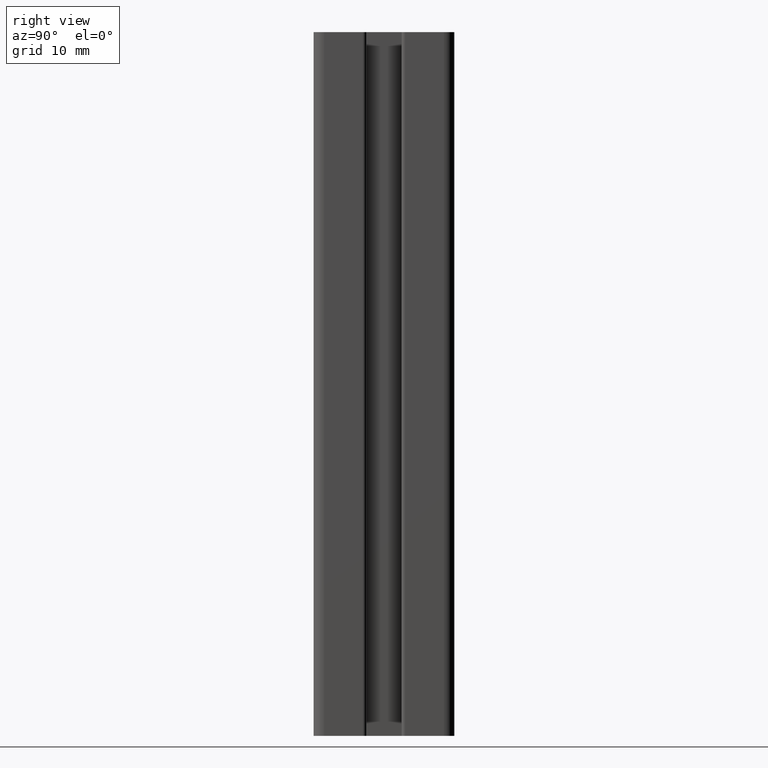
[diagram: clean part render]
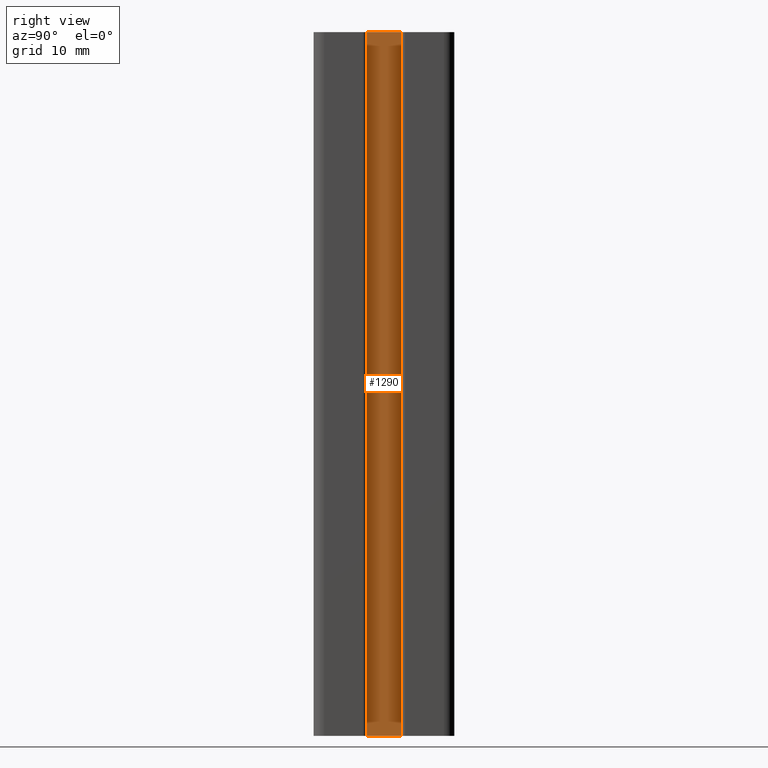
[diagram: same view with one face highlighted and labeled with its STEP entity id]
A machine part, right view. The second image highlights one B-rep face of the part: STEP entity #1290.
In plain terms, the highlighted planar face has unit normal (-1, -0, 0).
Its self-contained STEP definition (entity closure, byte-faithful):
#29=PLANE('',#1391);
#107=LINE('',#2043,#235);
#108=LINE('',#2046,#236);
#109=LINE('',#2048,#237);
#110=LINE('',#2049,#238);
#235=VECTOR('',#1646,100.);
#236=VECTOR('',#1649,5.05025253169417);
#237=VECTOR('',#1650,5.05025253169417);
#238=VECTOR('',#1651,100.);
#340=FACE_OUTER_BOUND('',#408,.T.);
#408=EDGE_LOOP('',(#957,#958,#959,#960));
#577=VERTEX_POINT('',#2039);
#578=VERTEX_POINT('',#2041);
#579=VERTEX_POINT('',#2045);
#580=VERTEX_POINT('',#2047);
#735=EDGE_CURVE('',#578,#577,#107,.T.);
#736=EDGE_CURVE('',#577,#579,#108,.T.);
#737=EDGE_CURVE('',#580,#578,#109,.T.);
#738=EDGE_CURVE('',#580,#579,#110,.T.);
#957=ORIENTED_EDGE('',*,*,#736,.F.);
#958=ORIENTED_EDGE('',*,*,#735,.F.);
#959=ORIENTED_EDGE('',*,*,#737,.F.);
#960=ORIENTED_EDGE('',*,*,#738,.T.);
#1290=ADVANCED_FACE('',(#340),#29,.F.);
#1391=AXIS2_PLACEMENT_3D('',#2044,#1647,#1648);
#1646=DIRECTION('',(0.,0.,1.));
#1647=DIRECTION('center_axis',(-1.,-8.79340601411644E-16,0.));
#1648=DIRECTION('ref_axis',(8.88178419700125E-16,-1.,0.));
#1649=DIRECTION('',(-8.79340601411644E-16,1.,0.));
#1650=DIRECTION('',(8.79340601411644E-16,-1.,0.));
#1651=DIRECTION('',(0.,0.,1.));
#2039=CARTESIAN_POINT('',(4.,-2.52512626584709,100.));
#2041=CARTESIAN_POINT('',(4.,-2.52512626584709,0.));
#2043=CARTESIAN_POINT('',(4.,-2.52512626584709,0.));
#2044=CARTESIAN_POINT('Origin',(4.,2.52512626584708,0.));
#2045=CARTESIAN_POINT('',(4.,2.52512626584708,100.));
#2046=CARTESIAN_POINT('',(4.,1.26256313292354,100.));
#2047=CARTESIAN_POINT('',(4.,2.52512626584708,0.));
#2048=CARTESIAN_POINT('',(4.,1.26256313292354,0.));
#2049=CARTESIAN_POINT('',(4.,2.52512626584708,0.));